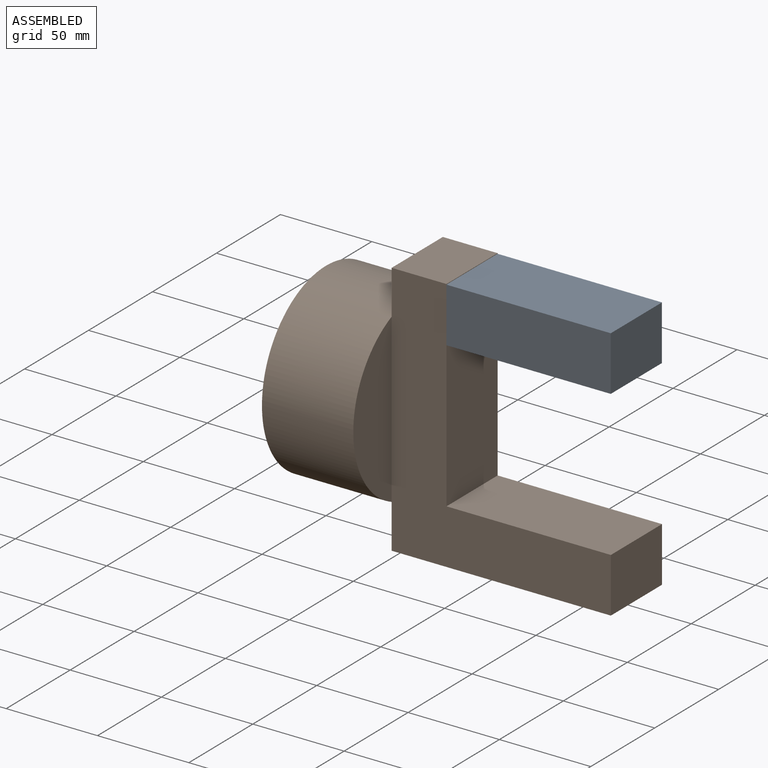
[diagram: assembled view]
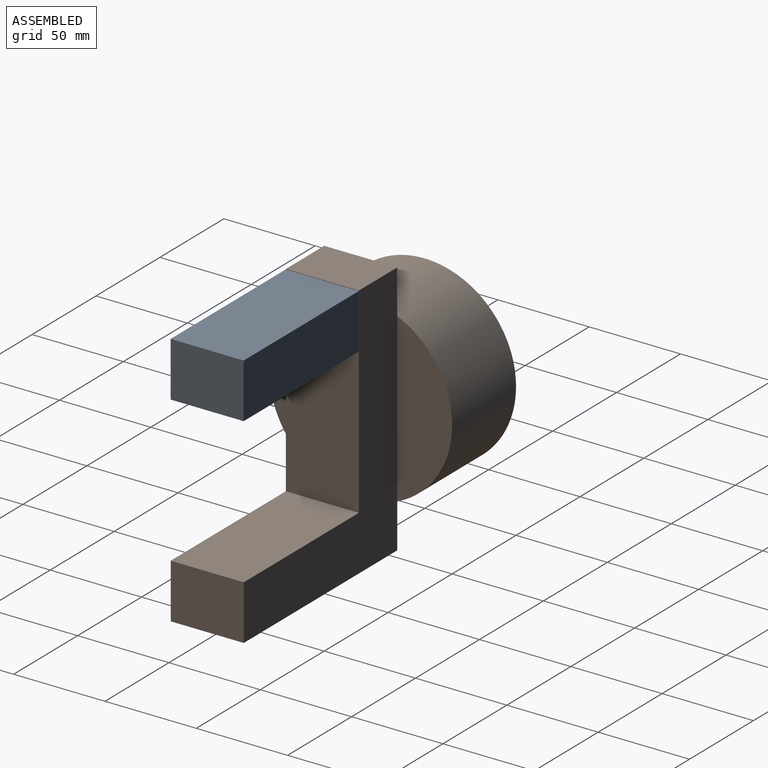
[diagram: assembled view, second angle]
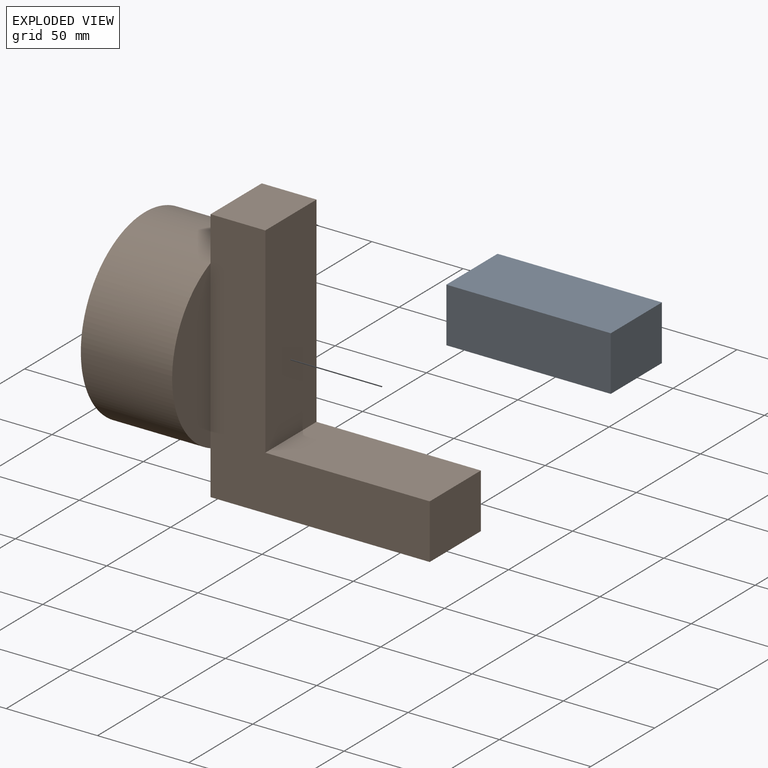
[diagram: exploded view]
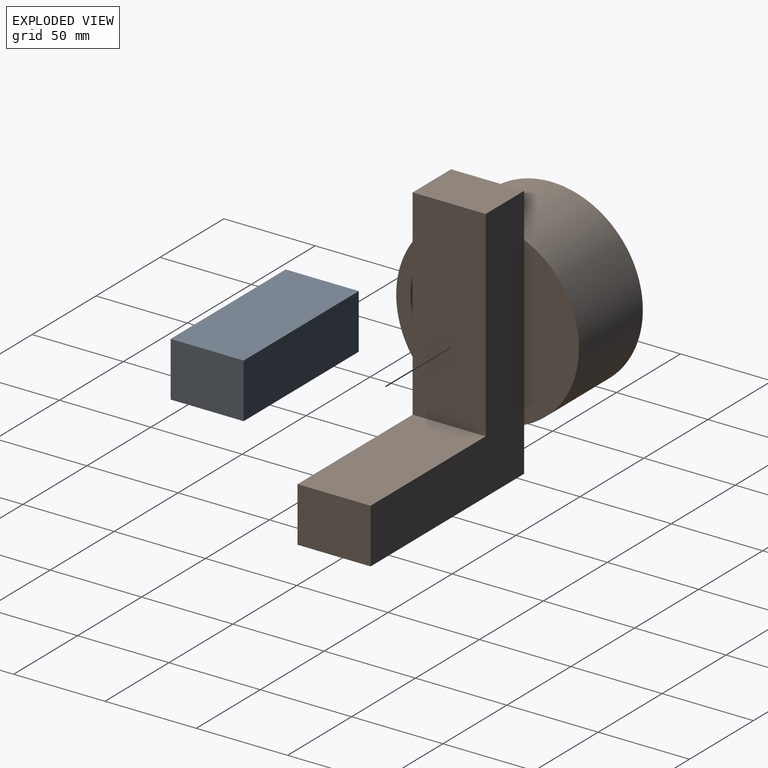
[diagram: exploded view, second angle]
FCSTD DOCUMENT  (FreeCAD 0.21R33771 (Git))
Label: freecad_gripper
License: All rights reserved
LicenseURL: https://en.wikipedia.org/wiki/All_rights_reserved
objects: Sketcher::SketchObject×4, PartDesign::Pad×4, App::FeaturePython×3, PartDesign::Body×2, App::Link×2, App::DocumentObjectGroupPython×1
note: 14 computed .brp shape members not serialized (recipe doc carries the construction recipe); baked Part::Feature solids carry a one-line shape summary decoded from their .brp

FEATURE [Sketcher::SketchObject] Sketch
  FullyConstrained = true
  MapMode = 5
  Placement = pos=(0,0,0) rot=(0.57735,0.57735,0.57735;2.0944rad)
  Support = -> [YZ_Plane]
  sketch-geometry (1):
    g0: Circle CenterX=0 CenterY=0 CenterZ=0 NormalX=0 NormalY=0 NormalZ=1 AngleXU=0 Radius=50
  constraints (2):
    c: Coincident(g0,g-1)
    c: Diameter(g0) = 100
FEATURE [PartDesign::Pad] Pad
  Direction = (1,-2e-16,3e-16)
  Length = 50
  Length2 = 10
  Placement = pos=(0,0,0) rot=(0.57735,0.57735,0.57735;2.0944rad)
  Profile = -> Sketch
  ReferenceAxis = -> Sketch [N_Axis]
  Type = 0
FEATURE [Sketcher::SketchObject] Sketch001
  FullyConstrained = true
  MapMode = 5
  Placement = pos=(50,-2.22e-14,1.11e-14) rot=(0.57735,0.57735,0.57735;2.0944rad)
  Support = -> [Pad]
  sketch-geometry (4):
    g0: LineSegment StartX=-20 StartY=70 StartZ=0 EndX=20 EndY=70 EndZ=0
    g1: LineSegment StartX=20 StartY=70 StartZ=0 EndX=20 EndY=-70 EndZ=0
    g2: LineSegment StartX=20 StartY=-70 StartZ=0 EndX=-20 EndY=-70 EndZ=0
    g3: LineSegment StartX=-20 StartY=-70 StartZ=0 EndX=-20 EndY=70 EndZ=0
  constraints (12):
    c: Coincident(g0,g1)
    c: Coincident(g1,g2)
    c: Coincident(g2,g3)
    c: Coincident(g3,g0)
    c: Horizontal(g0)
    c: Horizontal(g2)
    c: Vertical(g1)
    c: Vertical(g3)
    c: DistanceY(g-1,g0) = 70
    c: DistanceY(g2,g-1) = 70
    c: DistanceX(g0,g0) = 40
    c: DistanceX(g-1,g0) = 20
FEATURE [PartDesign::Pad] Pad001
  BaseFeature = -> Pad
  Direction = (1,-4e-16,4e-16)
  Length = 30
  Length2 = 10
  Placement = pos=(0,0,0) rot=(0.57735,0.57735,0.57735;2.0944rad)
  Profile = -> Sketch001
  ReferenceAxis = -> Sketch001 [N_Axis]
  Type = 0
FEATURE [Sketcher::SketchObject] Sketch002
  ExternalGeometry = -> [Pad001]
  FullyConstrained = true
  MapMode = 5
  Placement = pos=(80,-6.04e-14,3.65e-14) rot=(0.57735,0.57735,0.57735;2.0944rad)
  Support = -> [Pad001]
  sketch-geometry (4):
    g0: LineSegment StartX=-20 StartY=-70 StartZ=0 EndX=20 EndY=-70 EndZ=0
    g1: LineSegment StartX=20 StartY=-70 StartZ=0 EndX=20 EndY=-40 EndZ=0
    g2: LineSegment StartX=20 StartY=-40 StartZ=0 EndX=-20 EndY=-40 EndZ=0
    g3: LineSegment StartX=-20 StartY=-40 StartZ=0 EndX=-20 EndY=-70 EndZ=0
  constraints (10):
    c: Coincident(g0,g1)
    c: Coincident(g1,g2)
    c: Coincident(g2,g3)
    c: Coincident(g3,g0)
    c: Horizontal(g2)
    c: Vertical(g1)
    c: Vertical(g3)
    c: Coincident(g0,g-3)
    c: Coincident(g0,g-4)
    c: DistanceY(g0,g2) = 30
FEATURE [PartDesign::Pad] Pad002
  BaseFeature = -> Pad001
  Direction = (1,-7e-16,7e-16)
  Length = 90
  Length2 = 10
  Placement = pos=(0,0,0) rot=(0.57735,0.57735,0.57735;2.0944rad)
  Profile = -> Sketch002
  ReferenceAxis = -> Sketch002 [N_Axis]
  Type = 0
FEATURE [PartDesign::Body] Body  label="gripper_body_base"
  Group = -> [Sketch,Pad,Sketch001,Pad001,Sketch002,Pad002]
  Origin = -> Origin
  Tip = -> Pad002
FEATURE [Sketcher::SketchObject] Sketch003
  FullyConstrained = false
  MapMode = 5
  Placement = pos=(0,0,0) rot=(0.57735,0.57735,0.57735;2.0944rad)
  Support = -> [YZ_Plane001]
  sketch-geometry (4):
    g0: LineSegment StartX=-20.0602 StartY=2.7259 StartZ=0 EndX=19.9398 EndY=2.7259 EndZ=0
    g1: LineSegment StartX=19.9398 StartY=2.7259 StartZ=0 EndX=19.9398 EndY=-27.2741 EndZ=0
    g2: LineSegment StartX=19.9398 StartY=-27.2741 StartZ=0 EndX=-20.0602 EndY=-27.2741 EndZ=0
    g3: LineSegment StartX=-20.0602 StartY=-27.2741 StartZ=0 EndX=-20.0602 EndY=2.7259 EndZ=0
  constraints (10):
    c: Coincident(g0,g1)
    c: Coincident(g1,g2)
    c: Coincident(g2,g3)
    c: Coincident(g3,g0)
    c: Horizontal(g0)
    c: Horizontal(g2)
    c: Vertical(g1)
    c: Vertical(g3)
    c: DistanceX(g0,g0) = 40
    c: DistanceY(g1,g0) = 30
FEATURE [PartDesign::Pad] Pad003
  Direction = (1,-2e-16,3e-16)
  Length = 90
  Length2 = 10
  Placement = pos=(0,0,0) rot=(0.57735,0.57735,0.57735;2.0944rad)
  Profile = -> Sketch003
  ReferenceAxis = -> Sketch003 [N_Axis]
  Type = 0
FEATURE [PartDesign::Body] Body001  label="finger"
  Group = -> [Sketch003,Pad003]
  Origin = -> Origin001
  Tip = -> Pad003
FEATURE [App::FeaturePython] Joint  label="finger_joint"  # WARN: FeaturePython — macro-defined, semantics opaque (R4)
  Child = 1
  Effort = 0
  LowerLimit = 0
  Mimic = false
  Multiplier = 1
  Origin = pos=(80,0,67) rot=(0,0,1;0rad)
  Parent = 1
  Placement = pos=(80,0,67) rot=(0,0,1;0rad)
  Position = 0
  Type = 1
  UpperLimit = 0
  Velocity = 0
  _Type = Cross::Joint
FEATURE [App::Link] real_gripper_base_link_
  LinkedObject = -> Body
FEATURE [App::FeaturePython] Link  label="gripper_base_link"  # WARN: FeaturePython — macro-defined, semantics opaque (R4)
  Collision = -> [Body]
  Group = -> [real_gripper_base_link_]
  Ixx = 0
  Ixy = 0
  Ixz = 0
  Iyy = 0
  Iyz = 0
  Izz = 0
  Mass = 0
  MaterialNotCalculate = false
  Real = -> [Body]
  Visual = -> [Body]
  _Type = Cross::Link
FEATURE [App::Link] real_finger_link_
  LinkPlacement = pos=(80,0,67) rot=(0,0,1;0rad)
  LinkedObject = -> Body001
  Placement = pos=(80,0,67) rot=(0,0,1;0rad)
FEATURE [App::FeaturePython] Link001  label="finger_link"  # WARN: FeaturePython — macro-defined, semantics opaque (R4)
  Collision = -> [Body001]
  Group = -> [real_finger_link_]
  Ixx = 0
  Ixy = 0
  Ixz = 0
  Iyy = 0
  Iyz = 0
  Izz = 0
  Mass = 0
  MaterialNotCalculate = false
  Placement = pos=(80,0,67) rot=(0,0,1;0rad)
  Real = -> [Body001]
  Visual = -> [Body001]
  _Type = Cross::Link
FEATURE [App::DocumentObjectGroupPython] Robot  # scripted group (container) (typed FeaturePython)
  Group = -> [Link,Link001,Joint]
  _Type = Cross::Robot
